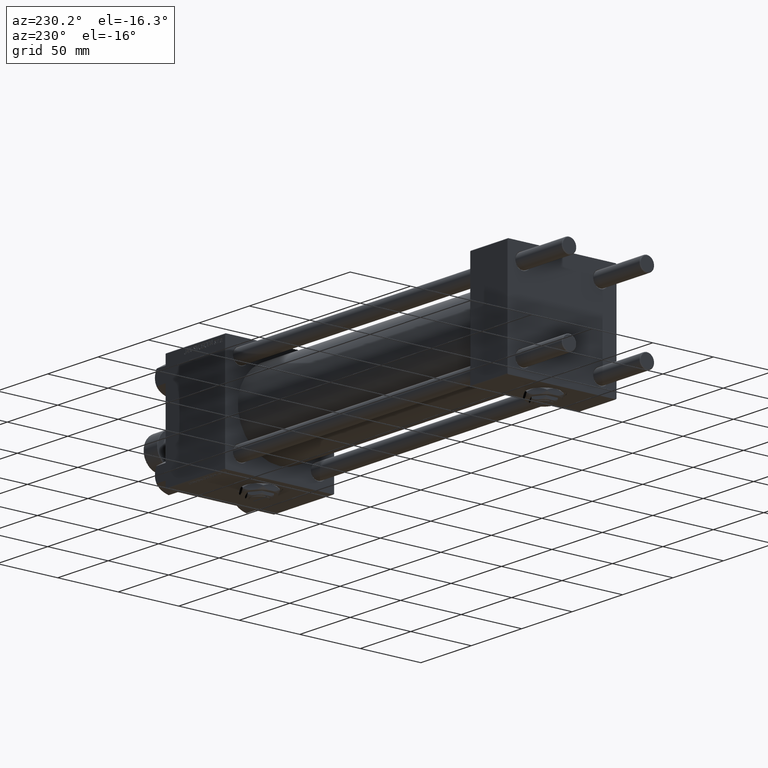
[diagram: clean part render]
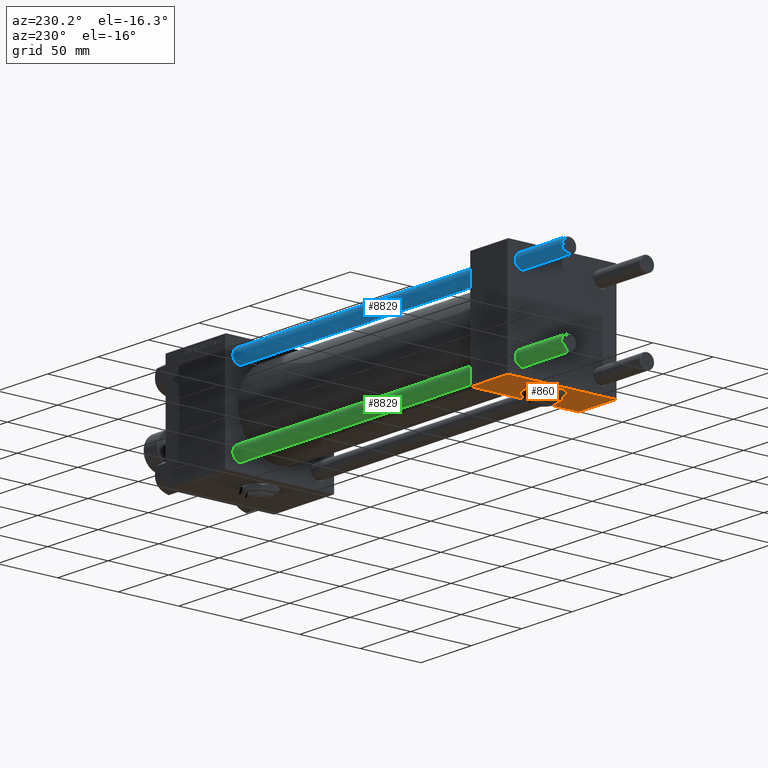
[diagram: same view with three faces highlighted in distinct colors, each labeled with its STEP entity id]
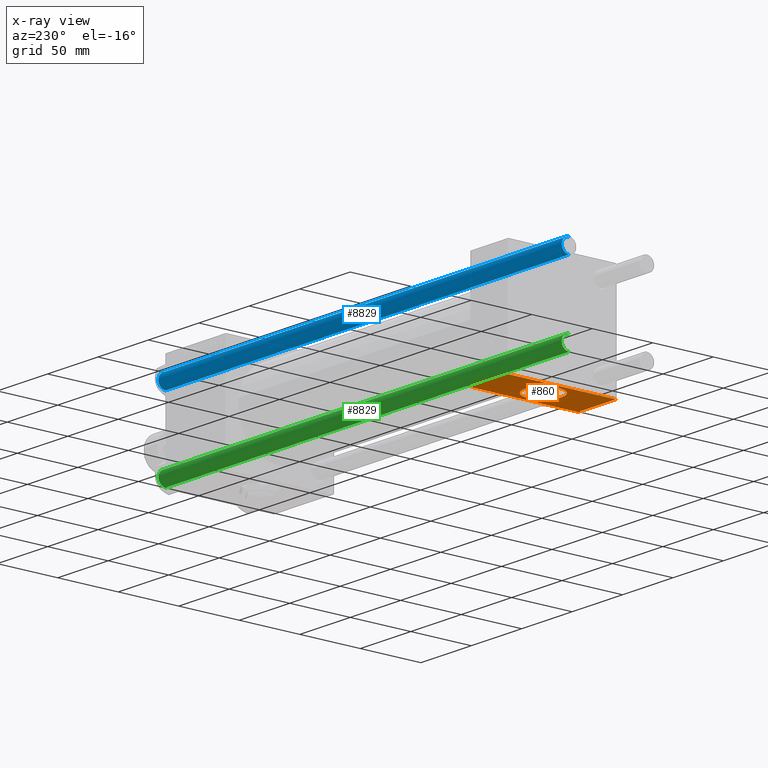
[diagram: x-ray of the same camera — body ghosted, the three highlighted faces saturated]
A machine part, auxiliary view with three faces highlighted in distinct colors.
The next image is the same camera in x-ray (body ghosted, the three faces saturated) — at least one of them is partly hidden behind the body in this view.
Their STEP definitions:

[orange] entity #860 — the highlighted planar face has unit normal (0, 0, -1).
#251 = DIRECTION ( 'NONE',  ( 0.000000000000000000, -1.000000000000000000, -1.541976423090495633E-16 ) ) ;
#842 = EDGE_CURVE ( 'NONE', #25031, #42659, #50800, .T. ) ;
#860 = ADVANCED_FACE ( 'NONE', ( #2403, #14544 ), #43633, .T. ) ;
#1014 = DIRECTION ( 'NONE',  ( 0.000000000000000000, -1.734723475976806848E-16, -1.000000000000000000 ) ) ;
#2403 = FACE_BOUND ( 'NONE', #48196, .T. ) ;
#4348 = AXIS2_PLACEMENT_3D ( 'NONE', #5467, #21615, #9695 ) ;
#4463 = CARTESIAN_POINT ( 'NONE',  ( 18.50000000000000000, 5.469317744930408178E-15, -44.99999999999999289 ) ) ;
#5467 = CARTESIAN_POINT ( 'NONE',  ( 18.50000000000000000, 5.469317744930408178E-15, -44.99999999999999289 ) ) ;
#5630 = CARTESIAN_POINT ( 'NONE',  ( 37.00000000000000000, -44.49999999999995737, -45.00000000000000000 ) ) ;
#8681 = DIRECTION ( 'NONE',  ( 0.000000000000000000, 1.000000000000000000, 0.000000000000000000 ) ) ;
#9187 = LINE ( 'NONE', #41444, #50937 ) ;
#9695 = DIRECTION ( 'NONE',  ( 0.000000000000000000, 1.000000000000000000, 0.000000000000000000 ) ) ;
#9921 = ORIENTED_EDGE ( 'NONE', *, *, #49799, .T. ) ;
#10461 = CARTESIAN_POINT ( 'NONE',  ( 0.000000000000000000, 44.49999999999998579, -44.99999999999998579 ) ) ;
#11093 = DIRECTION ( 'NONE',  ( -1.000000000000000000, 0.000000000000000000, 0.000000000000000000 ) ) ;
#11107 = DIRECTION ( 'NONE',  ( 0.000000000000000000, 1.000000000000000000, 1.541976423090495880E-16 ) ) ;
#11795 = ORIENTED_EDGE ( 'NONE', *, *, #51664, .F. ) ;
#12240 = CARTESIAN_POINT ( 'NONE',  ( 37.00000000000000000, 44.49999999999998579, -44.99999999999998579 ) ) ;
#12800 = CIRCLE ( 'NONE', #4348, 15.00000000000000000 ) ;
#12939 = AXIS2_PLACEMENT_3D ( 'NONE', #23545, #26737, #11107 ) ;
#13331 = ORIENTED_EDGE ( 'NONE', *, *, #21935, .F. ) ;
#14544 = FACE_OUTER_BOUND ( 'NONE', #51483, .T. ) ;
#17544 = EDGE_CURVE ( 'NONE', #27664, #20780, #47328, .T. ) ;
#17613 = EDGE_CURVE ( 'NONE', #26288, #19700, #38095, .T. ) ;
#17911 = DIRECTION ( 'NONE',  ( 0.000000000000000000, -1.000000000000000000, -1.541976423090495633E-16 ) ) ;
#19700 = VERTEX_POINT ( 'NONE', #37847 ) ;
#20780 = VERTEX_POINT ( 'NONE', #29357 ) ;
#21236 = VECTOR ( 'NONE', #11093, 1000.000000000000000 ) ;
#21615 = DIRECTION ( 'NONE',  ( 0.000000000000000000, -1.734723475976806848E-16, -1.000000000000000000 ) ) ;
#21935 = EDGE_CURVE ( 'NONE', #19700, #26288, #12800, .T. ) ;
#23545 = CARTESIAN_POINT ( 'NONE',  ( 37.00000000000000000, 44.99999999999998579, -44.99999999999998579 ) ) ;
#25031 = VERTEX_POINT ( 'NONE', #10461 ) ;
#26288 = VERTEX_POINT ( 'NONE', #43698 ) ;
#26311 = ORIENTED_EDGE ( 'NONE', *, *, #842, .T. ) ;
#26737 = DIRECTION ( 'NONE',  ( 0.000000000000000000, 1.541976423090495880E-16, -1.000000000000000000 ) ) ;
#26985 = CARTESIAN_POINT ( 'NONE',  ( 37.00000000000000000, 44.49999999999998579, -44.99999999999998579 ) ) ;
#27664 = VERTEX_POINT ( 'NONE', #5630 ) ;
#28794 = CARTESIAN_POINT ( 'NONE',  ( 0.000000000000000000, 44.99999999999998579, -44.99999999999998579 ) ) ;
#28817 = AXIS2_PLACEMENT_3D ( 'NONE', #4463, #1014, #8681 ) ;
#29357 = CARTESIAN_POINT ( 'NONE',  ( 0.000000000000000000, -44.49999999999995737, -45.00000000000000000 ) ) ;
#34092 = VECTOR ( 'NONE', #251, 1000.000000000000000 ) ;
#37847 = CARTESIAN_POINT ( 'NONE',  ( 18.50000000000000355, -14.99999999999999467, -44.99999999999999289 ) ) ;
#38095 = CIRCLE ( 'NONE', #28817, 15.00000000000000000 ) ;
#39136 = DIRECTION ( 'NONE',  ( 1.000000000000000000, 0.000000000000000000, 0.000000000000000000 ) ) ;
#39640 = CARTESIAN_POINT ( 'NONE',  ( 0.000000000000000000, -44.49999999999998579, -45.00000000000000000 ) ) ;
#41444 = CARTESIAN_POINT ( 'NONE',  ( 37.00000000000000000, 44.99999999999998579, -44.99999999999998579 ) ) ;
#42659 = VERTEX_POINT ( 'NONE', #12240 ) ;
#43633 = PLANE ( 'NONE',  #12939 ) ;
#43698 = CARTESIAN_POINT ( 'NONE',  ( 18.50000000000000000, 15.00000000000000533, -44.99999999999999289 ) ) ;
#44648 = LINE ( 'NONE', #28794, #34092 ) ;
#46815 = ORIENTED_EDGE ( 'NONE', *, *, #17613, .F. ) ;
#47328 = LINE ( 'NONE', #39640, #21236 ) ;
#47612 = VECTOR ( 'NONE', #39136, 1000.000000000000000 ) ;
#48196 = EDGE_LOOP ( 'NONE', ( #46815, #13331 ) ) ;
#49242 = ORIENTED_EDGE ( 'NONE', *, *, #17544, .T. ) ;
#49799 = EDGE_CURVE ( 'NONE', #42659, #27664, #9187, .T. ) ;
#50800 = LINE ( 'NONE', #26985, #47612 ) ;
#50937 = VECTOR ( 'NONE', #17911, 1000.000000000000000 ) ;
#51483 = EDGE_LOOP ( 'NONE', ( #11795, #26311, #9921, #49242 ) ) ;
#51664 = EDGE_CURVE ( 'NONE', #25031, #20780, #44648, .T. ) ;

[blue] entity #8829 — the highlighted cylindrical surface (edge-blend (fillet) strip) has radius 6 mm, axis along (-1, -0, -0).
#1409 = AXIS2_PLACEMENT_3D ( 'NONE', #18432, #39314, #18964 ) ;
#1599 = DIRECTION ( 'NONE',  ( -0.000000000000000000, -0.000000000000000000, 1.000000000000000000 ) ) ;
#1872 = DIRECTION ( 'NONE',  ( 1.000000000000000000, 0.000000000000000000, 0.000000000000000000 ) ) ;
#2033 = DIRECTION ( 'NONE',  ( 1.000000000000000000, 0.000000000000000000, 0.000000000000000000 ) ) ;
#2417 = EDGE_CURVE ( 'NONE', #11493, #34510, #41577, .T. ) ;
#2992 = EDGE_LOOP ( 'NONE', ( #15939, #36161, #38729, #7906 ) ) ;
#6173 = VECTOR ( 'NONE', #31065, 1000.000000000000000 ) ;
#6297 = DIRECTION ( 'NONE',  ( -0.000000000000000000, -0.000000000000000000, -1.000000000000000000 ) ) ;
#7906 = ORIENTED_EDGE ( 'NONE', *, *, #45490, .F. ) ;
#8829 = ADVANCED_FACE ( 'NONE', ( #51747 ), #15504, .T. ) ;
#10263 = CARTESIAN_POINT ( 'NONE',  ( -6.000000000000000888, 0.000000000000000000, 401.0000000000000000 ) ) ;
#11493 = VERTEX_POINT ( 'NONE', #41270 ) ;
#15504 = CYLINDRICAL_SURFACE ( 'NONE', #1409, 6.000000000000000888 ) ;
#15939 = ORIENTED_EDGE ( 'NONE', *, *, #2417, .T. ) ;
#17094 = VERTEX_POINT ( 'NONE', #28984 ) ;
#18432 = CARTESIAN_POINT ( 'NONE',  ( 0.000000000000000000, 0.000000000000000000, 401.0000000000000000 ) ) ;
#18792 = AXIS2_PLACEMENT_3D ( 'NONE', #46194, #42191, #2033 ) ;
#18964 = DIRECTION ( 'NONE',  ( -1.000000000000000000, 0.000000000000000000, 0.000000000000000000 ) ) ;
#20499 = VECTOR ( 'NONE', #6297, 1000.000000000000000 ) ;
#23889 = VERTEX_POINT ( 'NONE', #38184 ) ;
#24379 = EDGE_CURVE ( 'NONE', #23889, #17094, #41598, .T. ) ;
#26395 = LINE ( 'NONE', #10263, #20499 ) ;
#28984 = CARTESIAN_POINT ( 'NONE',  ( -6.000000000000000888, 0.000000000000000000, 0.5000000000003335110 ) ) ;
#31065 = DIRECTION ( 'NONE',  ( -0.000000000000000000, -0.000000000000000000, -1.000000000000000000 ) ) ;
#34510 = VERTEX_POINT ( 'NONE', #35659 ) ;
#35659 = CARTESIAN_POINT ( 'NONE',  ( 6.000000000000000888, 7.347880794884119736E-16, 400.5000000000003411 ) ) ;
#36161 = ORIENTED_EDGE ( 'NONE', *, *, #50952, .T. ) ;
#37821 = CARTESIAN_POINT ( 'NONE',  ( 0.000000000000000000, 0.000000000000000000, 0.5000000000003335110 ) ) ;
#38184 = CARTESIAN_POINT ( 'NONE',  ( 6.000000000000000888, 7.347880794884119736E-16, 0.5000000000003335110 ) ) ;
#38729 = ORIENTED_EDGE ( 'NONE', *, *, #24379, .T. ) ;
#39314 = DIRECTION ( 'NONE',  ( -0.000000000000000000, -0.000000000000000000, -1.000000000000000000 ) ) ;
#41270 = CARTESIAN_POINT ( 'NONE',  ( -6.000000000000000888, 0.000000000000000000, 400.5000000000003411 ) ) ;
#41577 = CIRCLE ( 'NONE', #18792, 6.000000000000000888 ) ;
#41598 = CIRCLE ( 'NONE', #45790, 6.000000000000000888 ) ;
#42191 = DIRECTION ( 'NONE',  ( 0.000000000000000000, 0.000000000000000000, -1.000000000000000000 ) ) ;
#43211 = CARTESIAN_POINT ( 'NONE',  ( 6.000000000000000888, 7.347880794884119736E-16, 401.0000000000000000 ) ) ;
#45490 = EDGE_CURVE ( 'NONE', #11493, #17094, #26395, .T. ) ;
#45790 = AXIS2_PLACEMENT_3D ( 'NONE', #37821, #1599, #1872 ) ;
#46194 = CARTESIAN_POINT ( 'NONE',  ( 0.000000000000000000, 0.000000000000000000, 400.5000000000003411 ) ) ;
#50952 = EDGE_CURVE ( 'NONE', #34510, #23889, #51182, .T. ) ;
#51182 = LINE ( 'NONE', #43211, #6173 ) ;
#51747 = FACE_OUTER_BOUND ( 'NONE', #2992, .T. ) ;

[green] entity #8829 — the highlighted cylindrical surface (edge-blend (fillet) strip) has radius 6 mm, axis along (1, 0, -0).
#1409 = AXIS2_PLACEMENT_3D ( 'NONE', #18432, #39314, #18964 ) ;
#1599 = DIRECTION ( 'NONE',  ( -0.000000000000000000, -0.000000000000000000, 1.000000000000000000 ) ) ;
#1872 = DIRECTION ( 'NONE',  ( 1.000000000000000000, 0.000000000000000000, 0.000000000000000000 ) ) ;
#2033 = DIRECTION ( 'NONE',  ( 1.000000000000000000, 0.000000000000000000, 0.000000000000000000 ) ) ;
#2417 = EDGE_CURVE ( 'NONE', #11493, #34510, #41577, .T. ) ;
#2992 = EDGE_LOOP ( 'NONE', ( #15939, #36161, #38729, #7906 ) ) ;
#6173 = VECTOR ( 'NONE', #31065, 1000.000000000000000 ) ;
#6297 = DIRECTION ( 'NONE',  ( -0.000000000000000000, -0.000000000000000000, -1.000000000000000000 ) ) ;
#7906 = ORIENTED_EDGE ( 'NONE', *, *, #45490, .F. ) ;
#8829 = ADVANCED_FACE ( 'NONE', ( #51747 ), #15504, .T. ) ;
#10263 = CARTESIAN_POINT ( 'NONE',  ( -6.000000000000000888, 0.000000000000000000, 401.0000000000000000 ) ) ;
#11493 = VERTEX_POINT ( 'NONE', #41270 ) ;
#15504 = CYLINDRICAL_SURFACE ( 'NONE', #1409, 6.000000000000000888 ) ;
#15939 = ORIENTED_EDGE ( 'NONE', *, *, #2417, .T. ) ;
#17094 = VERTEX_POINT ( 'NONE', #28984 ) ;
#18432 = CARTESIAN_POINT ( 'NONE',  ( 0.000000000000000000, 0.000000000000000000, 401.0000000000000000 ) ) ;
#18792 = AXIS2_PLACEMENT_3D ( 'NONE', #46194, #42191, #2033 ) ;
#18964 = DIRECTION ( 'NONE',  ( -1.000000000000000000, 0.000000000000000000, 0.000000000000000000 ) ) ;
#20499 = VECTOR ( 'NONE', #6297, 1000.000000000000000 ) ;
#23889 = VERTEX_POINT ( 'NONE', #38184 ) ;
#24379 = EDGE_CURVE ( 'NONE', #23889, #17094, #41598, .T. ) ;
#26395 = LINE ( 'NONE', #10263, #20499 ) ;
#28984 = CARTESIAN_POINT ( 'NONE',  ( -6.000000000000000888, 0.000000000000000000, 0.5000000000003335110 ) ) ;
#31065 = DIRECTION ( 'NONE',  ( -0.000000000000000000, -0.000000000000000000, -1.000000000000000000 ) ) ;
#34510 = VERTEX_POINT ( 'NONE', #35659 ) ;
#35659 = CARTESIAN_POINT ( 'NONE',  ( 6.000000000000000888, 7.347880794884119736E-16, 400.5000000000003411 ) ) ;
#36161 = ORIENTED_EDGE ( 'NONE', *, *, #50952, .T. ) ;
#37821 = CARTESIAN_POINT ( 'NONE',  ( 0.000000000000000000, 0.000000000000000000, 0.5000000000003335110 ) ) ;
#38184 = CARTESIAN_POINT ( 'NONE',  ( 6.000000000000000888, 7.347880794884119736E-16, 0.5000000000003335110 ) ) ;
#38729 = ORIENTED_EDGE ( 'NONE', *, *, #24379, .T. ) ;
#39314 = DIRECTION ( 'NONE',  ( -0.000000000000000000, -0.000000000000000000, -1.000000000000000000 ) ) ;
#41270 = CARTESIAN_POINT ( 'NONE',  ( -6.000000000000000888, 0.000000000000000000, 400.5000000000003411 ) ) ;
#41577 = CIRCLE ( 'NONE', #18792, 6.000000000000000888 ) ;
#41598 = CIRCLE ( 'NONE', #45790, 6.000000000000000888 ) ;
#42191 = DIRECTION ( 'NONE',  ( 0.000000000000000000, 0.000000000000000000, -1.000000000000000000 ) ) ;
#43211 = CARTESIAN_POINT ( 'NONE',  ( 6.000000000000000888, 7.347880794884119736E-16, 401.0000000000000000 ) ) ;
#45490 = EDGE_CURVE ( 'NONE', #11493, #17094, #26395, .T. ) ;
#45790 = AXIS2_PLACEMENT_3D ( 'NONE', #37821, #1599, #1872 ) ;
#46194 = CARTESIAN_POINT ( 'NONE',  ( 0.000000000000000000, 0.000000000000000000, 400.5000000000003411 ) ) ;
#50952 = EDGE_CURVE ( 'NONE', #34510, #23889, #51182, .T. ) ;
#51182 = LINE ( 'NONE', #43211, #6173 ) ;
#51747 = FACE_OUTER_BOUND ( 'NONE', #2992, .T. ) ;